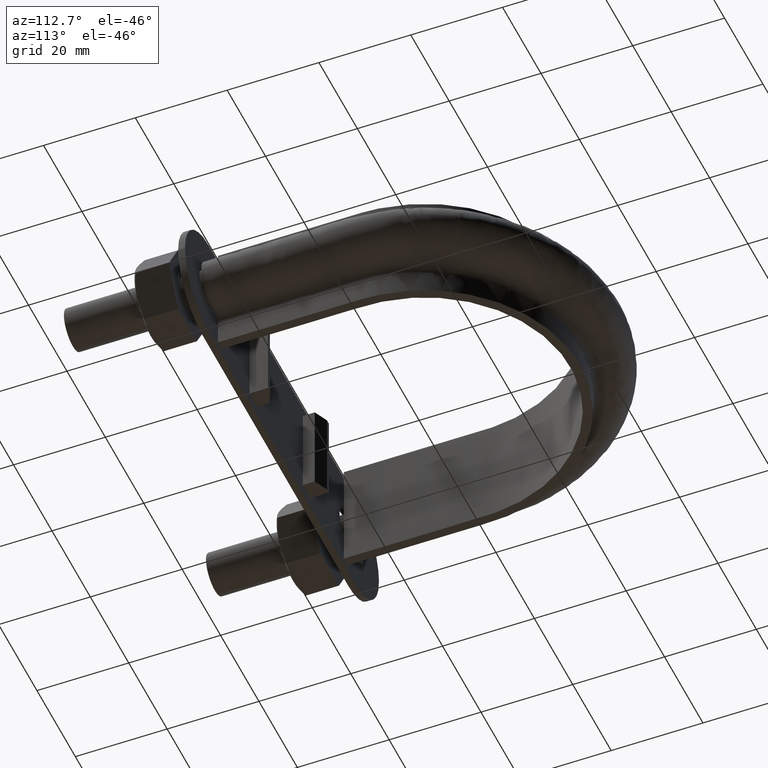
[diagram: clean part render]
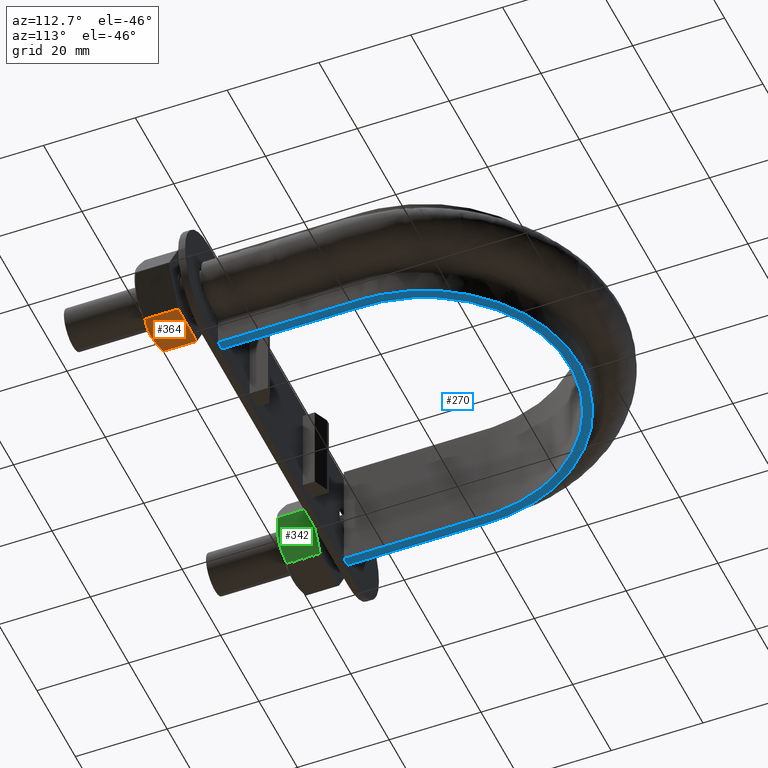
[diagram: same view with three faces highlighted in distinct colors, each labeled with its STEP entity id]
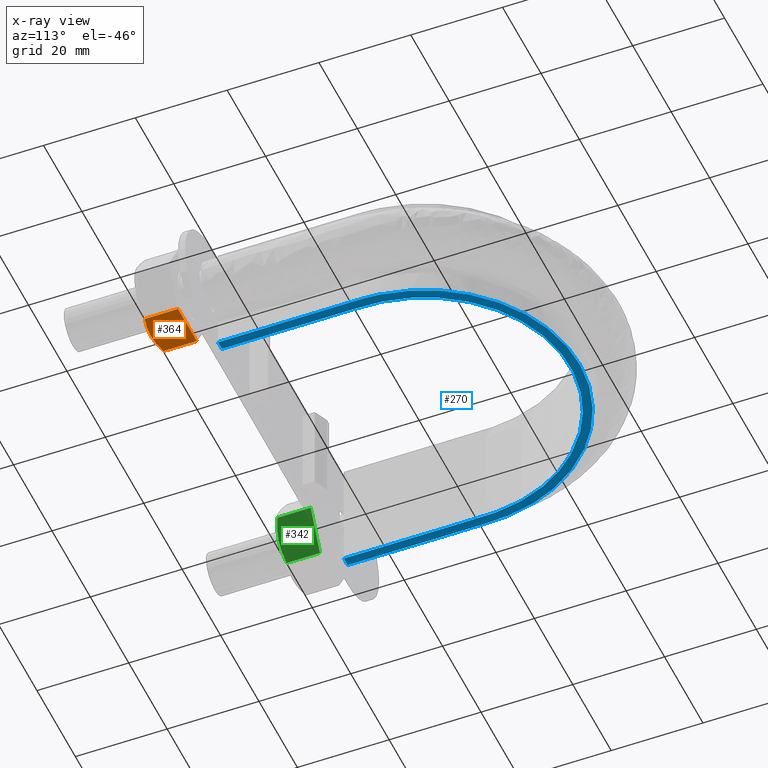
[diagram: x-ray of the same camera — body ghosted, the three highlighted faces saturated]
A machine part, auxiliary view with three faces highlighted in distinct colors.
The next image is the same camera in x-ray (body ghosted, the three faces saturated) — at least one of them is partly hidden behind the body in this view.
Their STEP definitions:

[orange] entity #364 — the highlighted planar face has unit normal (-0, -0, 1).
#364 = ADVANCED_FACE( '', ( #599 ), #600, .F. );
#599 = FACE_OUTER_BOUND( '', #1527, .T. );
#600 = PLANE( '', #1528 );
#1527 = EDGE_LOOP( '', ( #2278, #2279, #2280, #2281, #2282 ) );
#1528 = AXIS2_PLACEMENT_3D( '', #2283, #2284, #2285 );
#2278 = ORIENTED_EDGE( '', *, *, #2598, .F. );
#2279 = ORIENTED_EDGE( '', *, *, #2603, .F. );
#2280 = ORIENTED_EDGE( '', *, *, #2597, .F. );
#2281 = ORIENTED_EDGE( '', *, *, #2594, .F. );
#2282 = ORIENTED_EDGE( '', *, *, #2604, .F. );
#2283 = CARTESIAN_POINT( '', ( 41.9074772882318, 25.0000000000000, -8.49999999992652 ) );
#2284 = DIRECTION( '', ( -1.42826306337455E-011, -1.83690953071608E-016, 1.00000000000000 ) );
#2285 = DIRECTION( '', ( 1.00000000000000, -1.22460635384861E-016, 1.42826306337455E-011 ) );
#2594 = EDGE_CURVE( '', #2976, #2958, #2978, .T. );
#2597 = EDGE_CURVE( '', #2958, #2979, #2983, .F. );
#2598 = EDGE_CURVE( '', #2936, #2984, #2985, .T. );
#2603 = EDGE_CURVE( '', #2979, #2936, #2991, .T. );
#2604 = EDGE_CURVE( '', #2984, #2976, #2992, .T. );
#2936 = VERTEX_POINT( '', #3729 );
#2958 = VERTEX_POINT( '', #3766 );
#2976 = VERTEX_POINT( '', #3788 );
#2978 = LINE( '', #3790, #3791 );
#2979 = VERTEX_POINT( '', #3792 );
#2983 = LINE( '', #3797, #3798 );
#2984 = VERTEX_POINT( '', #3799 );
#2985 = B_SPLINE_CURVE_WITH_KNOTS( '', 3, ( #3800, #3801, #3802, #3803, #3804, #3805, #3806, #3807 ), .UNSPECIFIED., .F., .F., ( 4, 2, 2, 4 ), ( 0.00493529902949250, 0.00616408349151626, 0.00739286795354001, 0.00985043687758753 ), .UNSPECIFIED. );
#2991 = B_SPLINE_CURVE_WITH_KNOTS( '', 3, ( #3824, #3825, #3826, #3827, #3828, #3829 ), .UNSPECIFIED., .F., .F., ( 4, 2, 4 ), ( 7.17194508352354E-007, 0.00246800811200043, 0.00493529902949250 ), .UNSPECIFIED. );
#2992 = LINE( '', #3830, #3831 );
#3729 = CARTESIAN_POINT( '', ( 37.0000000001214, 17.0000000000008, -8.49999999999703 ) );
#3766 = CARTESIAN_POINT( '', ( 32.1225006408200, 25.0000000000000, -8.50000000006712 ) );
#3788 = CARTESIAN_POINT( '', ( 41.8774993594228, 25.0000000000000, -8.49999999992695 ) );
#3790 = CARTESIAN_POINT( '', ( 41.9000000001199, 25.0000000000000, -8.49999999992663 ) );
#3791 = VECTOR( '', #4205, 999.999999999950 );
#3792 = CARTESIAN_POINT( '', ( 32.1225006408200, 17.7505553499472, -8.50000000006712 ) );
#3797 = CARTESIAN_POINT( '', ( 32.1225006408200, 25.0000000000000, -8.50000000006712 ) );
#3798 = VECTOR( '', #4210, 1000.00000000015 );
#3799 = CARTESIAN_POINT( '', ( 41.8774993594228, 17.7505553499472, -8.49999999992695 ) );
#3800 = CARTESIAN_POINT( '', ( 37.0000000001213, 17.0000000000001, -8.49999999999661 ) );
#3801 = CARTESIAN_POINT( '', ( 37.4137096278721, 17.0000000000001, -8.49999999999070 ) );
#3802 = CARTESIAN_POINT( '', ( 37.8294868217238, 17.0177112141220, -8.49999999998476 ) );
#3803 = CARTESIAN_POINT( '', ( 38.6519990017786, 17.0863020976799, -8.49999999997301 ) );
#3804 = CARTESIAN_POINT( '', ( 39.0605211181177, 17.1371114863340, -8.49999999996718 ) );
#3805 = CARTESIAN_POINT( '', ( 40.2788676849013, 17.3331491064655, -8.49999999994978 ) );
#3806 = CARTESIAN_POINT( '', ( 41.0814991313276, 17.5218250443849, -8.49999999993832 ) );
#3807 = CARTESIAN_POINT( '', ( 41.8774993594230, 17.7505553499464, -8.49999999992695 ) );
#3824 = CARTESIAN_POINT( '', ( 32.1225006408198, 17.7505553499463, -8.50000000006627 ) );
#3825 = CARTESIAN_POINT( '', ( 32.9206041743637, 17.5212206605154, -8.50000000005488 ) );
#3826 = CARTESIAN_POINT( '', ( 33.7244723607490, 17.3324529479804, -8.50000000004340 ) );
#3827 = CARTESIAN_POINT( '', ( 35.3487632834857, 17.0714150925760, -8.50000000002020 ) );
#3828 = CARTESIAN_POINT( '', ( 36.1693075242843, 17.0000000000001, -8.50000000000848 ) );
#3829 = CARTESIAN_POINT( '', ( 37.0000000001213, 17.0000000000001, -8.49999999999661 ) );
#3830 = CARTESIAN_POINT( '', ( 41.8774993594228, 25.0000000000000, -8.49999999992695 ) );
#3831 = VECTOR( '', #4215, 1000.00000000015 );
#4205 = DIRECTION( '', ( -1.00000000000000, 1.22460635384877E-016, -1.43687839404557E-011 ) );
#4210 = DIRECTION( '', ( 1.22460635382238E-016, 1.00000000000000, 1.83690953073357E-016 ) );
#4215 = DIRECTION( '', ( 1.22460635382238E-016, 1.00000000000000, 1.83690953073357E-016 ) );

[blue] entity #270 — the highlighted planar face has unit normal (0, 0, 1).
#270 = ADVANCED_FACE( '', ( #386 ), #387, .F. );
#386 = FACE_OUTER_BOUND( '', #1164, .T. );
#387 = PLANE( '', #1165 );
#1164 = EDGE_LOOP( '', ( #1578, #1579, #1580, #1581 ) );
#1165 = AXIS2_PLACEMENT_3D( '', #1582, #1583, #1584 );
#1578 = ORIENTED_EDGE( '', *, *, #2391, .F. );
#1579 = ORIENTED_EDGE( '', *, *, #2388, .F. );
#1580 = ORIENTED_EDGE( '', *, *, #2389, .F. );
#1581 = ORIENTED_EDGE( '', *, *, #2383, .F. );
#1582 = CARTESIAN_POINT( '', ( 45.0000000000000, 110.300000000000, -12.5000000000000 ) );
#1583 = DIRECTION( '', ( 0.000000000000000, 0.000000000000000, 1.00000000000000 ) );
#1584 = DIRECTION( '', ( 1.22460635382238E-016, 1.00000000000000, 0.000000000000000 ) );
#2383 = EDGE_CURVE( '', #2622, #2624, #2625, .T. );
#2388 = EDGE_CURVE( '', #2632, #2628, #2634, .T. );
#2389 = EDGE_CURVE( '', #2624, #2632, #2635, .F. );
#2391 = EDGE_CURVE( '', #2628, #2622, #2637, .F. );
#2622 = VERTEX_POINT( '', #3017 );
#2624 = VERTEX_POINT( '', #3020 );
#2625 = LINE( '', #3021, #3022 );
#2628 = VERTEX_POINT( '', #3055 );
#2632 = VERTEX_POINT( '', #3061 );
#2634 = LINE( '', #3093, #3094 );
#2635 = B_SPLINE_CURVE_WITH_KNOTS( '', 3, ( #3095, #3096, #3097, #3098, #3099, #3100, #3101, #3102, #3103, #3104, #3105, #3106, #3107, #3108, #3109, #3110, #3111 ), .UNSPECIFIED., .F., .F., ( 4, 3, 1, 1, 1, 1, 1, 1, 1, 3, 4 ), ( 0.0649546827794584, 1.00000000000000, 1.50000000000000, 2.00000000000000, 3.00000000000000, 4.00000000000000, 5.00000000000000, 6.00000000000000, 6.50000000000000, 7.00000000000000, 7.93504531722054 ), .UNSPECIFIED. );
#2637 = B_SPLINE_CURVE_WITH_KNOTS( '', 3, ( #3129, #3130, #3131, #3132, #3133, #3134, #3135, #3136, #3137, #3138, #3139, #3140, #3141, #3142, #3143, #3144, #3145 ), .UNSPECIFIED., .F., .F., ( 4, 3, 1, 1, 1, 1, 1, 1, 1, 3, 4 ), ( -7.93504531722054, -7.00000000000000, -6.50000000000000, -6.00000000000000, -5.00000000000000, -4.00000000000000, -3.00000000000000, -2.00000000000000, -1.50000000000000, -1.00000000000000, -0.0649546827794584 ), .UNSPECIFIED. );
#3017 = CARTESIAN_POINT( '', ( 31.7500000000000, 30.3000000000001, -12.5000000000000 ) );
#3020 = CARTESIAN_POINT( '', ( 33.7500000000000, 30.3000000000001, -12.5000000000000 ) );
#3021 = CARTESIAN_POINT( '', ( -45.0000000000000, 30.3000000000001, -12.5000000000000 ) );
#3022 = VECTOR( '', #3882, 1000.00000000000 );
#3055 = CARTESIAN_POINT( '', ( -31.7500000000000, 30.3000000000001, -12.5000000000000 ) );
#3061 = CARTESIAN_POINT( '', ( -33.7500000000000, 30.3000000000001, -12.5000000000000 ) );
#3093 = CARTESIAN_POINT( '', ( -45.0000000000000, 30.3000000000001, -12.5000000000000 ) );
#3094 = VECTOR( '', #3885, 1000.00000000000 );
#3095 = CARTESIAN_POINT( '', ( -33.7500000000000, 30.3000000000001, -12.5000000000000 ) );
#3096 = CARTESIAN_POINT( '', ( -33.7500000000000, 40.6166666666667, -12.5000000000000 ) );
#3097 = CARTESIAN_POINT( '', ( -33.7500000000000, 50.9333333333333, -12.5000000000000 ) );
#3098 = CARTESIAN_POINT( '', ( -33.7500000000000, 61.2500000000000, -12.5000000000000 ) );
#3099 = CARTESIAN_POINT( '', ( -33.7500000000000, 64.1871878666593, -12.5000000000000 ) );
#3100 = CARTESIAN_POINT( '', ( -32.9599759745505, 70.0846679582191, -12.5000000000000 ) );
#3101 = CARTESIAN_POINT( '', ( -28.4402068792077, 81.0673801551942, -12.5000000000000 ) );
#3102 = CARTESIAN_POINT( '', ( -17.6636188802502, 91.8452388121563, -12.5000000000000 ) );
#3103 = CARTESIAN_POINT( '', ( 1.78984595570027E-014, 96.5773805939219, -12.5000000000000 ) );
#3104 = CARTESIAN_POINT( '', ( 17.6636188802502, 91.8452388121563, -12.5000000000000 ) );
#3105 = CARTESIAN_POINT( '', ( 28.4402068792077, 81.0673801551942, -12.5000000000000 ) );
#3106 = CARTESIAN_POINT( '', ( 32.9599759745505, 70.0846679582191, -12.5000000000000 ) );
#3107 = CARTESIAN_POINT( '', ( 33.7500000000000, 64.1871878666593, -12.5000000000000 ) );
#3108 = CARTESIAN_POINT( '', ( 33.7500000000000, 61.2500000000000, -12.5000000000000 ) );
#3109 = CARTESIAN_POINT( '', ( 33.7500000000000, 50.9333333333333, -12.5000000000000 ) );
#3110 = CARTESIAN_POINT( '', ( 33.7500000000000, 40.6166666666667, -12.5000000000000 ) );
#3111 = CARTESIAN_POINT( '', ( 33.7500000000000, 30.3000000000001, -12.5000000000000 ) );
#3129 = CARTESIAN_POINT( '', ( 31.7500000000000, 30.3000000000001, -12.5000000000000 ) );
#3130 = CARTESIAN_POINT( '', ( 31.7500000000000, 40.6166666666667, -12.5000000000000 ) );
#3131 = CARTESIAN_POINT( '', ( 31.7500000000000, 50.9333333333334, -12.5000000000000 ) );
#3132 = CARTESIAN_POINT( '', ( 31.7500000000000, 61.2500000000000, -12.5000000000000 ) );
#3133 = CARTESIAN_POINT( '', ( 31.7500000000000, 64.0085550717052, -12.5000000000000 ) );
#3134 = CARTESIAN_POINT( '', ( 31.0059900824327, 69.5629876399669, -12.5000000000000 ) );
#3135 = CARTESIAN_POINT( '', ( 26.7553231191718, 79.8919426147231, -12.5000000000000 ) );
#3136 = CARTESIAN_POINT( '', ( 16.6167400676300, 90.0325782676569, -12.5000000000000 ) );
#3137 = CARTESIAN_POINT( '', ( 1.85094291698502E-014, 94.4837108661715, -12.5000000000000 ) );
#3138 = CARTESIAN_POINT( '', ( -16.6167400676300, 90.0325782676569, -12.5000000000000 ) );
#3139 = CARTESIAN_POINT( '', ( -26.7553231191717, 79.8919426147231, -12.5000000000000 ) );
#3140 = CARTESIAN_POINT( '', ( -31.0059900824327, 69.5629876399669, -12.5000000000000 ) );
#3141 = CARTESIAN_POINT( '', ( -31.7500000000000, 64.0085550717052, -12.5000000000000 ) );
#3142 = CARTESIAN_POINT( '', ( -31.7500000000000, 61.2500000000000, -12.5000000000000 ) );
#3143 = CARTESIAN_POINT( '', ( -31.7500000000000, 50.9333333333334, -12.5000000000000 ) );
#3144 = CARTESIAN_POINT( '', ( -31.7500000000000, 40.6166666666667, -12.5000000000000 ) );
#3145 = CARTESIAN_POINT( '', ( -31.7500000000000, 30.3000000000001, -12.5000000000000 ) );
#3882 = DIRECTION( '', ( 1.00000000000000, -1.22460635382238E-016, 0.000000000000000 ) );
#3885 = DIRECTION( '', ( 1.00000000000000, -1.22460635382238E-016, 0.000000000000000 ) );

[green] entity #342 — the highlighted planar face has unit normal (-0.866, 0, 0.5).
#342 = ADVANCED_FACE( '', ( #550 ), #551, .F. );
#550 = FACE_OUTER_BOUND( '', #1478, .T. );
#551 = PLANE( '', #1479 );
#1478 = EDGE_LOOP( '', ( #2113, #2114, #2115, #2116, #2117 ) );
#1479 = AXIS2_PLACEMENT_3D( '', #2118, #2119, #2120 );
#2113 = ORIENTED_EDGE( '', *, *, #2553, .F. );
#2114 = ORIENTED_EDGE( '', *, *, #2548, .F. );
#2115 = ORIENTED_EDGE( '', *, *, #2554, .F. );
#2116 = ORIENTED_EDGE( '', *, *, #2540, .F. );
#2117 = ORIENTED_EDGE( '', *, *, #2555, .F. );
#2118 = CARTESIAN_POINT( '', ( -27.1850454237793, 25.0000000000000, 1.41032885998954E-010 ) );
#2119 = DIRECTION( '', ( -0.866025403791623, 1.42085446710886E-017, 0.499999999987557 ) );
#2120 = DIRECTION( '', ( 0.499999999987556, -2.20311349497817E-016, 0.866025403791623 ) );
#2540 = EDGE_CURVE( '', #2886, #2888, #2889, .T. );
#2548 = EDGE_CURVE( '', #2900, #2849, #2902, .T. );
#2553 = EDGE_CURVE( '', #2849, #2907, #2908, .T. );
#2554 = EDGE_CURVE( '', #2888, #2900, #2909, .F. );
#2555 = EDGE_CURVE( '', #2907, #2886, #2910, .T. );
#2849 = VERTEX_POINT( '', #3556 );
#2886 = VERTEX_POINT( '', #3611 );
#2888 = VERTEX_POINT( '', #3613 );
#2889 = LINE( '', #3614, #3615 );
#2900 = VERTEX_POINT( '', #3636 );
#2902 = B_SPLINE_CURVE_WITH_KNOTS( '', 3, ( #3638, #3639, #3640, #3641, #3642, #3643 ), .UNSPECIFIED., .F., .F., ( 4, 2, 4 ), ( 4.83064900408852E-007, 0.00246777364959009, 0.00493506423427976 ), .UNSPECIFIED. );
#2907 = VERTEX_POINT( '', #3660 );
#2908 = B_SPLINE_CURVE_WITH_KNOTS( '', 3, ( #3661, #3662, #3663, #3664, #3665, #3666, #3667, #3668 ), .UNSPECIFIED., .F., .F., ( 4, 2, 2, 4 ), ( 0.00493506423427976, 0.00616384870526168, 0.00739263317624359, 0.00985020211820742 ), .UNSPECIFIED. );
#2909 = LINE( '', #3669, #3670 );
#2910 = LINE( '', #3671, #3672 );
#3556 = CARTESIAN_POINT( '', ( -29.6387840677738, 17.0000000000008, -4.24999999989275 ) );
#3611 = CARTESIAN_POINT( '', ( -27.2000343881834, 25.0000000000000, -0.0259616477605547 ) );
#3613 = CARTESIAN_POINT( '', ( -32.0775337473642, 25.0000000000000, -8.47403835202493 ) );
#3614 = CARTESIAN_POINT( '', ( -32.0887840677124, 25.0000000000000, -8.49352447847022 ) );
#3615 = VECTOR( '', #4117, 999.999999999950 );
#3636 = CARTESIAN_POINT( '', ( -32.0775337473642, 17.7505553499472, -8.47403835202493 ) );
#3638 = CARTESIAN_POINT( '', ( -32.0775337473635, 17.7505553499468, -8.47403835202542 ) );
#3639 = CARTESIAN_POINT( '', ( -31.6784813830927, 17.5212203171281, -7.78285938220495 ) );
#3640 = CARTESIAN_POINT( '', ( -31.2765469148608, 17.3324525365444, -7.08668846189115 ) );
#3641 = CARTESIAN_POINT( '', ( -30.4644013764806, 17.0714148540591, -5.68001112622956 ) );
#3642 = CARTESIAN_POINT( '', ( -30.0541295593839, 17.0000000000005, -4.96939949408085 ) );
#3643 = CARTESIAN_POINT( '', ( -29.6387840677734, 17.0000000000005, -4.24999999989299 ) );
#3660 = CARTESIAN_POINT( '', ( -27.2000343881834, 17.7505553499472, -0.0259616477605560 ) );
#3661 = CARTESIAN_POINT( '', ( -29.6387840677734, 17.0000000000005, -4.24999999989299 ) );
#3662 = CARTESIAN_POINT( '', ( -29.4319295961720, 17.0000000000006, -3.89171754529453 ) );
#3663 = CARTESIAN_POINT( '', ( -29.2240406050701, 17.0177112081769, -3.53164325035993 ) );
#3664 = CARTESIAN_POINT( '', ( -28.8127840792830, 17.0863021936218, -2.81932605272883 ) );
#3665 = CARTESIAN_POINT( '', ( -28.6085229009078, 17.1371116504199, -2.46553531375732 ) );
#3666 = CARTESIAN_POINT( '', ( -27.9993495049811, 17.3331494013917, -1.41041604135807 ) );
#3667 = CARTESIAN_POINT( '', ( -27.5980340352801, 17.5218253127358, -0.715317257949503 ) );
#3668 = CARTESIAN_POINT( '', ( -27.2000343881833, 17.7505553499468, -0.0259616477604860 ) );
#3669 = CARTESIAN_POINT( '', ( -32.0775337473642, 25.0000000000000, -8.47403835202493 ) );
#3670 = VECTOR( '', #4132, 1000.00000000015 );
#3671 = CARTESIAN_POINT( '', ( -27.2000343881834, 25.0000000000000, -0.0259616477605556 ) );
#3672 = VECTOR( '', #4133, 1000.00000000015 );
#4117 = DIRECTION( '', ( -0.499999999987631, 2.20311349497818E-016, -0.866025403791580 ) );
#4132 = DIRECTION( '', ( 1.22460635382238E-016, 1.00000000000000, 1.83690953073357E-016 ) );
#4133 = DIRECTION( '', ( 1.22460635382238E-016, 1.00000000000000, 1.83690953073357E-016 ) );